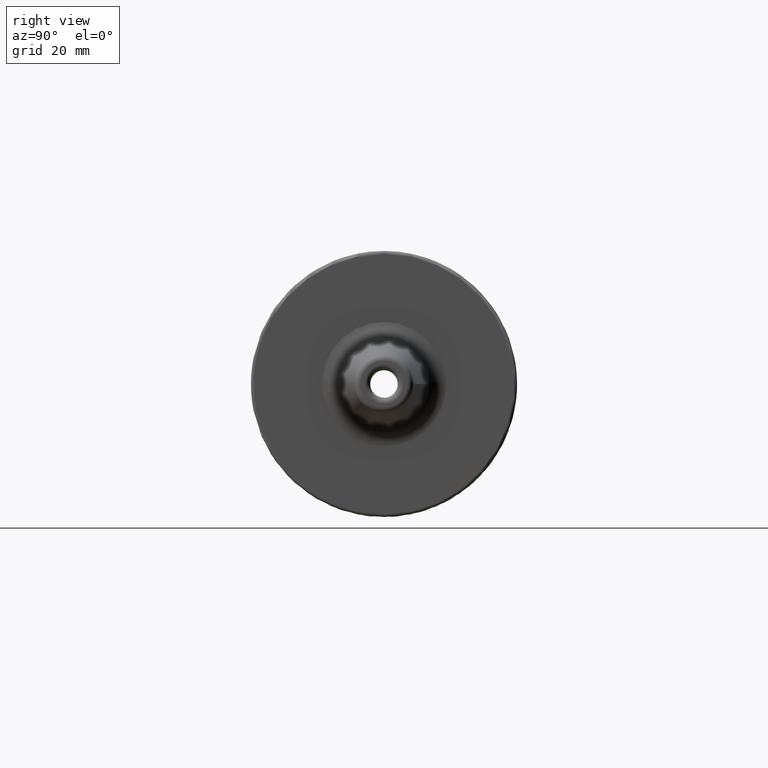
[diagram: clean part render]
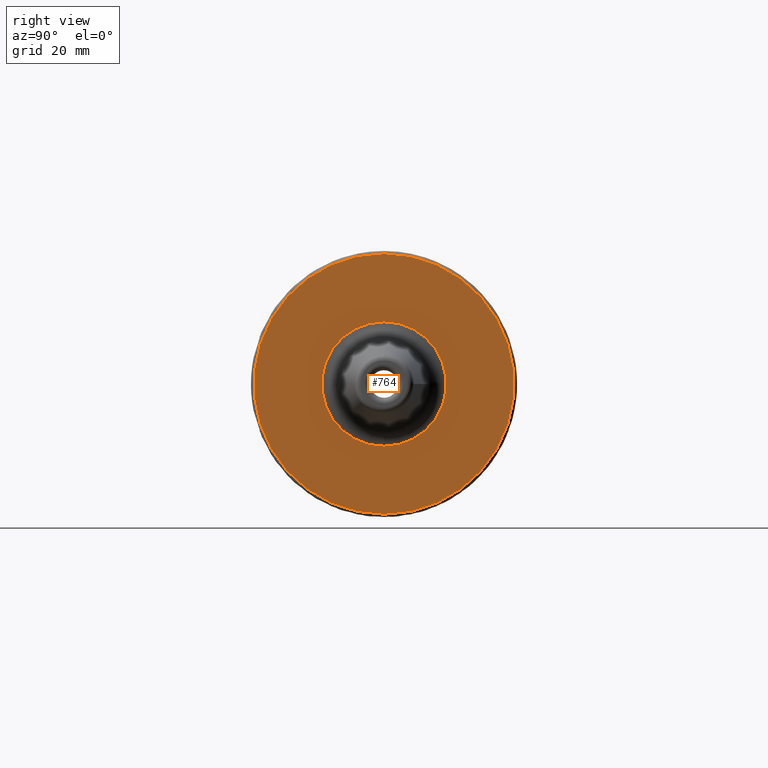
[diagram: same view with one face highlighted and labeled with its STEP entity id]
A machine part, right view. The second image highlights one B-rep face of the part: STEP entity #764.
In plain terms, the highlighted planar face has unit normal (1, 0, 0).
Its self-contained STEP definition (entity closure, byte-faithful):
#140=FACE_BOUND('',#214,.T.);
#145=PLANE('',#848);
#165=FACE_OUTER_BOUND('',#213,.T.);
#213=EDGE_LOOP('',(#540));
#214=EDGE_LOOP('',(#541));
#271=CIRCLE('',#847,10.7638363343101);
#272=CIRCLE('',#849,22.5);
#325=VERTEX_POINT('',#1212);
#326=VERTEX_POINT('',#1216);
#407=EDGE_CURVE('',#325,#325,#271,.T.);
#408=EDGE_CURVE('',#326,#326,#272,.T.);
#540=ORIENTED_EDGE('',*,*,#408,.T.);
#541=ORIENTED_EDGE('',*,*,#407,.F.);
#764=ADVANCED_FACE('',(#165,#140),#145,.T.);
#847=AXIS2_PLACEMENT_3D('',#1214,#974,#975);
#848=AXIS2_PLACEMENT_3D('',#1215,#976,#977);
#849=AXIS2_PLACEMENT_3D('',#1217,#978,#979);
#974=DIRECTION('center_axis',(1.,1.62798202122572E-21,0.));
#975=DIRECTION('ref_axis',(-1.62798202122572E-21,1.,1.22464679914735E-16));
#976=DIRECTION('center_axis',(1.,1.62798202122572E-21,0.));
#977=DIRECTION('ref_axis',(0.,0.,-1.));
#978=DIRECTION('center_axis',(1.,1.62798202122572E-21,0.));
#979=DIRECTION('ref_axis',(0.,0.,-1.));
#1212=CARTESIAN_POINT('',(22.,-1.31819465528195E-15,-10.7638363343101));
#1214=CARTESIAN_POINT('Origin',(22.,-4.88394606367717E-21,0.));
#1215=CARTESIAN_POINT('Origin',(22.,2.0818995585505E-15,0.));
#1216=CARTESIAN_POINT('',(22.,-6.73683912849231E-16,22.5));
#1217=CARTESIAN_POINT('Origin',(22.,2.08177138523231E-15,0.));